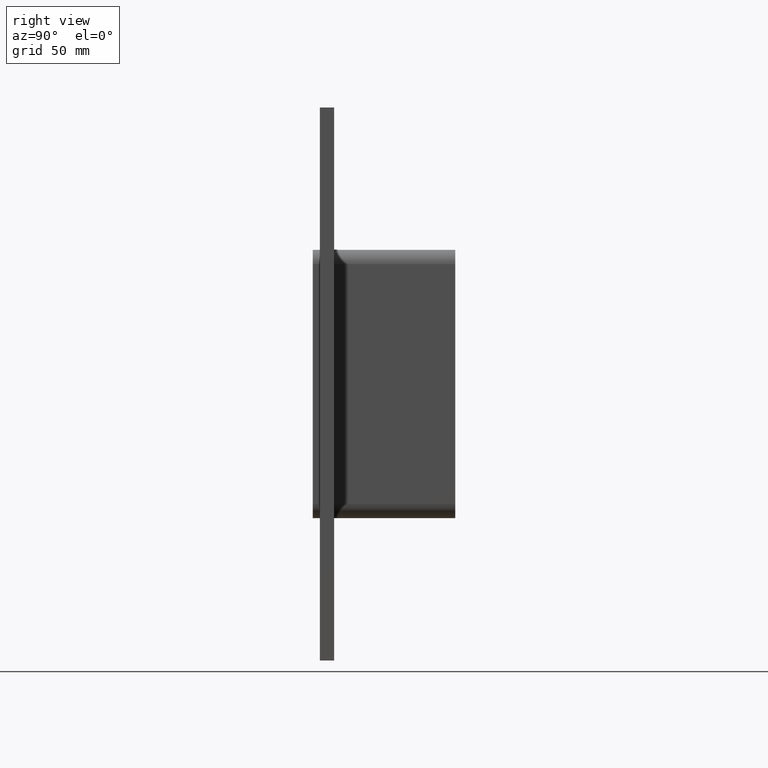
[diagram: clean part render]
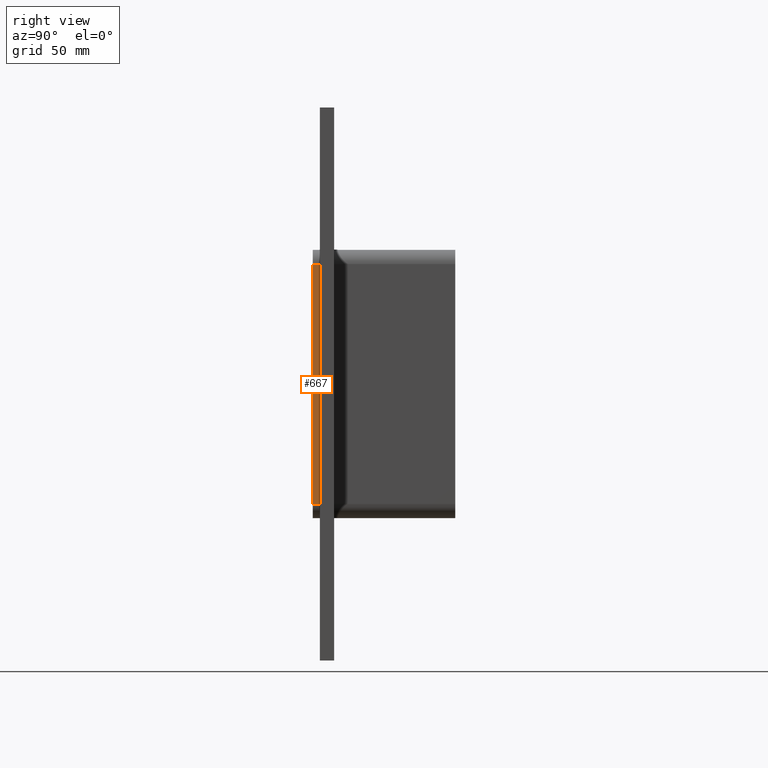
[diagram: same view with one face highlighted and labeled with its STEP entity id]
A machine part, right view. The second image highlights one B-rep face of the part: STEP entity #667.
In plain terms, the highlighted planar face has unit normal (1, 0, 0).
Its self-contained STEP definition (entity closure, byte-faithful):
#372=CARTESIAN_POINT('',(36.25,0.0,50.500000000000057));
#373=VERTEX_POINT('',#372);
#381=CARTESIAN_POINT('',(36.25,0.0,-50.500000000000057));
#382=VERTEX_POINT('',#381);
#383=CARTESIAN_POINT('',(36.25,0.0,-50.500000000000057));
#384=DIRECTION('',(0.0,0.0,1.0));
#385=VECTOR('',#384,101.00000000000011);
#386=LINE('',#383,#385);
#387=EDGE_CURVE('',#382,#373,#386,.T.);
#538=CARTESIAN_POINT('',(36.25,-3.0,-50.500000000000057));
#539=VERTEX_POINT('',#538);
#540=CARTESIAN_POINT('',(36.25,0.0,-50.500000000000057));
#541=DIRECTION('',(0.0,-1.0,0.0));
#542=VECTOR('',#541,3.0);
#543=LINE('',#540,#542);
#544=EDGE_CURVE('',#382,#539,#543,.T.);
#644=CARTESIAN_POINT('',(36.25,0.0,56.500000000000021));
#645=DIRECTION('',(1.0,0.0,0.0));
#646=DIRECTION('',(0.0,0.0,-1.0));
#647=AXIS2_PLACEMENT_3D('',#644,#645,#646);
#648=PLANE('',#647);
#649=ORIENTED_EDGE('',*,*,#387,.T.);
#650=CARTESIAN_POINT('',(36.25,-3.0,50.500000000000057));
#651=VERTEX_POINT('',#650);
#652=CARTESIAN_POINT('',(36.25,-3.0,50.500000000000057));
#653=DIRECTION('',(0.0,1.0,0.0));
#654=VECTOR('',#653,3.0);
#655=LINE('',#652,#654);
#656=EDGE_CURVE('',#651,#373,#655,.T.);
#657=ORIENTED_EDGE('',*,*,#656,.F.);
#658=CARTESIAN_POINT('',(36.25,-3.0,-50.500000000000057));
#659=DIRECTION('',(0.0,0.0,1.0));
#660=VECTOR('',#659,101.00000000000011);
#661=LINE('',#658,#660);
#662=EDGE_CURVE('',#539,#651,#661,.T.);
#663=ORIENTED_EDGE('',*,*,#662,.F.);
#664=ORIENTED_EDGE('',*,*,#544,.F.);
#665=EDGE_LOOP('',(#649,#657,#663,#664));
#666=FACE_OUTER_BOUND('',#665,.T.);
#667=ADVANCED_FACE('',(#666),#648,.T.);